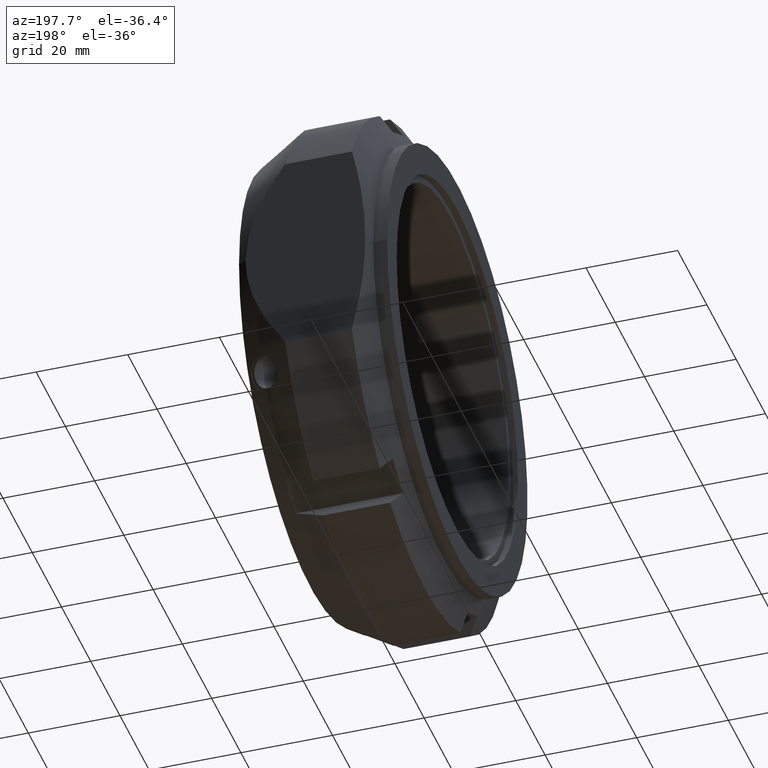
[diagram: clean part render]
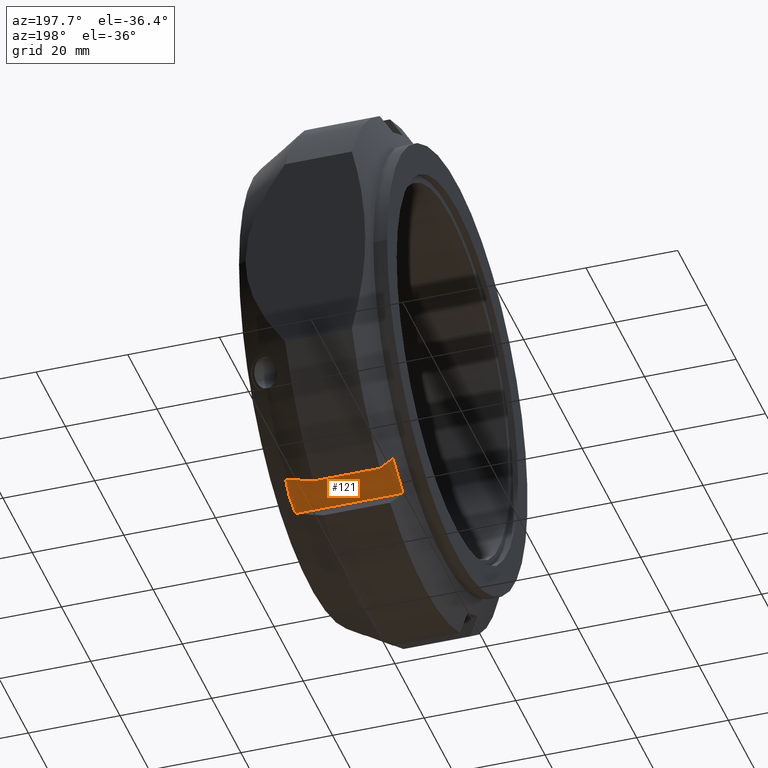
[diagram: same view with one face highlighted and labeled with its STEP entity id]
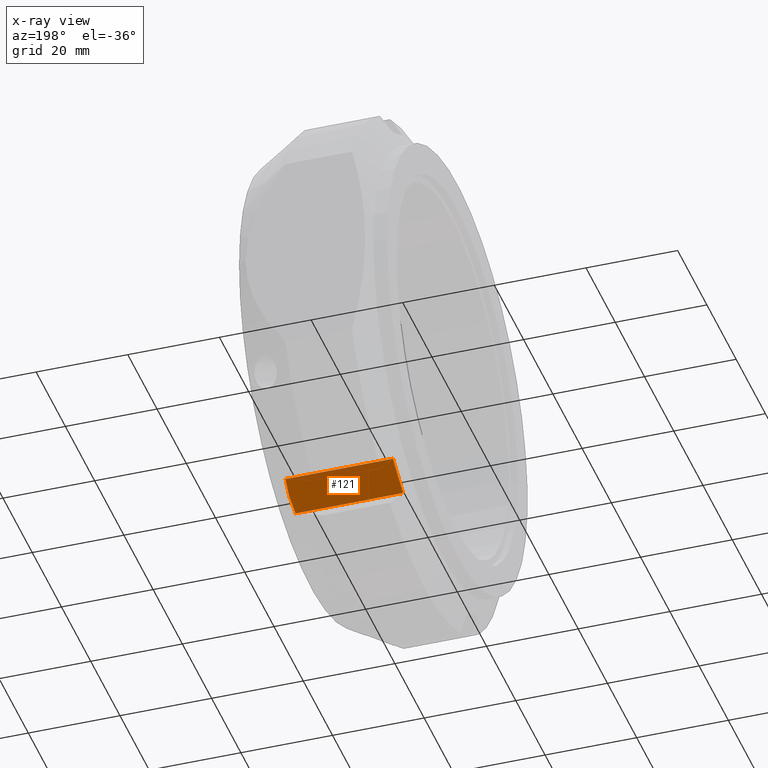
[diagram: x-ray of the same camera — body ghosted, the highlighted face saturated]
A machine part, auxiliary view. The second image highlights one B-rep face of the part: STEP entity #121.
The next image is the same camera in x-ray: the body ghosted, the highlighted face saturated — about 0% of this face is hidden behind the body in this view.
In plain terms, the highlighted planar face has unit normal (0, 0.5, -0.866).
Its self-contained STEP definition (entity closure, byte-faithful):
#68=CARTESIAN_POINT('',(0.0,22.035898384862232,-46.167295593006372));
#69=DIRECTION('',(0.0,0.5,-0.866025403784439));
#70=DIRECTION('',(0.0,0.866025403784438,0.5));
#71=AXIS2_PLACEMENT_3D('',#68,#69,#70);
#72=PLANE('',#71);
#73=CARTESIAN_POINT('',(4.822476705602689,28.964101615137739,-42.167295593006372));
#74=VERTEX_POINT('',#73);
#75=CARTESIAN_POINT('',(4.822476705602688,22.035898384862229,-46.167295593006372));
#76=VERTEX_POINT('',#75);
#77=CARTESIAN_POINT('',(4.822476705602689,28.964101615137739,-42.167295593006372));
#78=CARTESIAN_POINT('',(4.641901759481975,25.49999999994494,-44.167295593038148));
#79=CARTESIAN_POINT('',(4.822476705602688,22.035898384862229,-46.167295593006372));
#87=(BOUNDED_CURVE()B_SPLINE_CURVE(2,(#77,#78,#79),.UNSPECIFIED.,.F.,.U.)B_SPLINE_CURVE_WITH_KNOTS((3,3),(1.654384860627534,2.489687210784737),.UNSPECIFIED.)CURVE()GEOMETRIC_REPRESENTATION_ITEM()RATIONAL_B_SPLINE_CURVE((1.037622404359471,1.04080896818942,1.037622404359723))REPRESENTATION_ITEM(''));
#88=EDGE_CURVE('',#74,#76,#87,.T.);
#89=ORIENTED_EDGE('',*,*,#88,.F.);
#90=CARTESIAN_POINT('',(28.264620690760729,28.964101615137743,-42.167295593006372));
#91=VERTEX_POINT('',#90);
#92=CARTESIAN_POINT('',(4.822476705602689,28.964101615137743,-42.167295593006372));
#93=DIRECTION('',(1.0,0.0,0.0));
#94=VECTOR('',#93,23.44214398515804);
#95=LINE('',#92,#94);
#96=EDGE_CURVE('',#74,#91,#95,.T.);
#97=ORIENTED_EDGE('',*,*,#96,.T.);
#98=CARTESIAN_POINT('',(28.264620690760722,22.035898384862232,-46.167295593006372));
#99=VERTEX_POINT('',#98);
#100=CARTESIAN_POINT('',(28.264620690760722,22.035898384862232,-46.167295593006372));
#101=CARTESIAN_POINT('',(28.80634552915641,25.500000000000341,-44.167295593006166));
#102=CARTESIAN_POINT('',(28.264620690760729,28.964101615137743,-42.167295593006372));
#110=(BOUNDED_CURVE()B_SPLINE_CURVE(2,(#100,#101,#102),.UNSPECIFIED.,.F.,.U.)B_SPLINE_CURVE_WITH_KNOTS((3,3),(1.734643537009384,2.610468659470702),.UNSPECIFIED.)CURVE()GEOMETRIC_REPRESENTATION_ITEM()RATIONAL_B_SPLINE_CURVE((1.037622404359556,1.040808968189459,1.037622404359556))REPRESENTATION_ITEM(''));
#111=EDGE_CURVE('',#99,#91,#110,.T.);
#112=ORIENTED_EDGE('',*,*,#111,.F.);
#113=CARTESIAN_POINT('',(4.822476705602688,22.035898384862232,-46.167295593006372));
#114=DIRECTION('',(1.0,0.0,0.0));
#115=VECTOR('',#114,23.442143985158033);
#116=LINE('',#113,#115);
#117=EDGE_CURVE('',#76,#99,#116,.T.);
#118=ORIENTED_EDGE('',*,*,#117,.F.);
#119=EDGE_LOOP('',(#89,#97,#112,#118));
#120=FACE_OUTER_BOUND('',#119,.T.);
#121=ADVANCED_FACE('',(#120),#72,.T.);